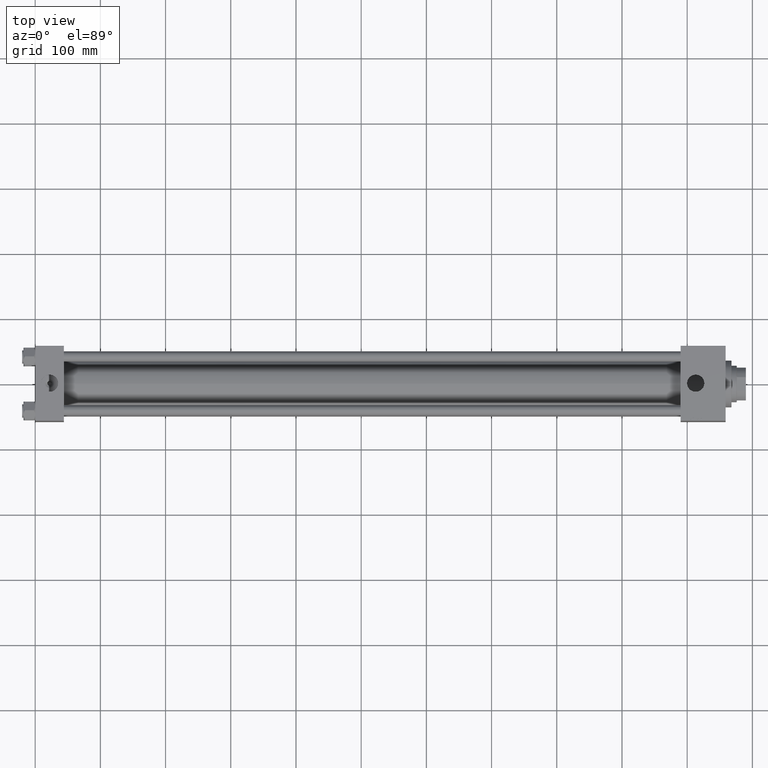
[diagram: clean part render]
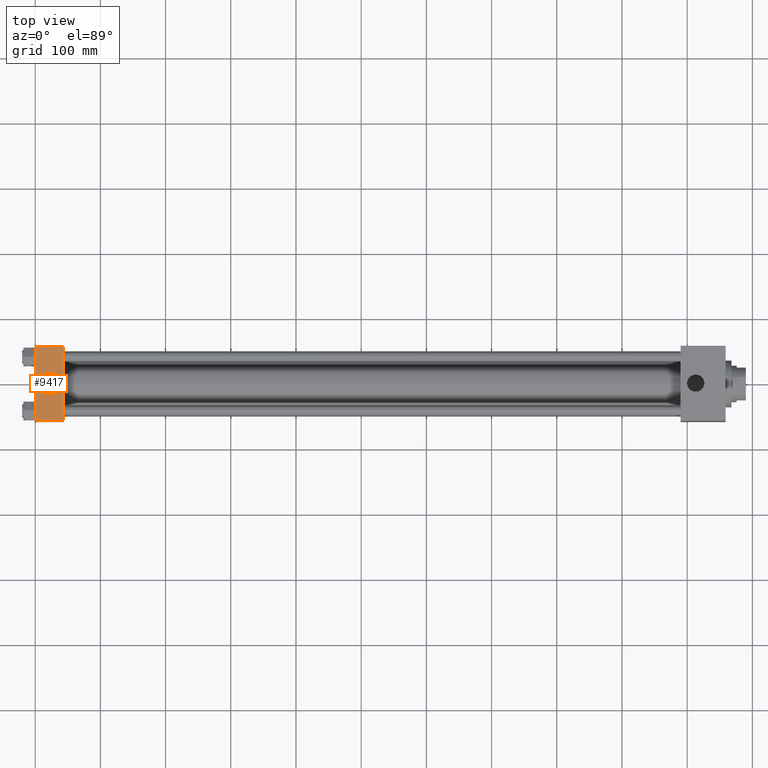
[diagram: same view with one face highlighted and labeled with its STEP entity id]
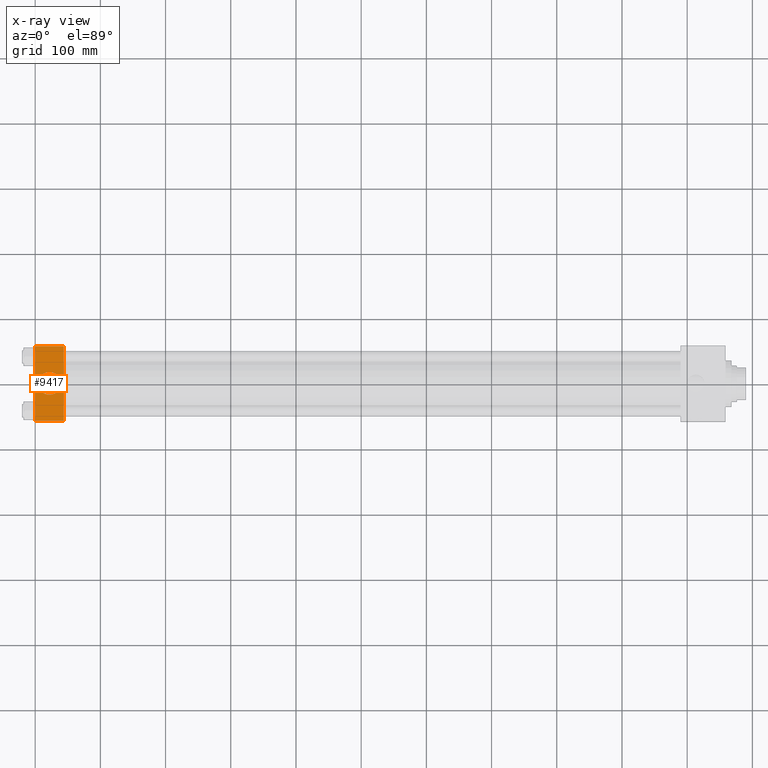
[diagram: x-ray of the same camera — body ghosted, the highlighted face saturated]
A machine part, top view. The second image highlights one B-rep face of the part: STEP entity #9417.
The next image is the same camera in x-ray: the body ghosted, the highlighted face saturated — about 0% of this face is hidden behind the body in this view.
In plain terms, the highlighted planar face has unit normal (0, 0, -1).
Its self-contained STEP definition (entity closure, byte-faithful):
#1423 = CARTESIAN_POINT ( 'NONE',  ( 4.499999999999997335, -6.530485481376167224E-15, 57.50000000000000000 ) ) ;
#1879 = DIRECTION ( 'NONE',  ( 0.000000000000000000, -1.000000000000000000, -1.206764157201257045E-16 ) ) ;
#2601 = VERTEX_POINT ( 'NONE', #41404 ) ;
#2824 = DIRECTION ( 'NONE',  ( 0.000000000000000000, 0.000000000000000000, 1.000000000000000000 ) ) ;
#3148 = VECTOR ( 'NONE', #18020, 1000.000000000000000 ) ;
#4976 = CARTESIAN_POINT ( 'NONE',  ( 44.00000000000000000, 57.49999999999999289, 57.50000000000000711 ) ) ;
#5267 = ORIENTED_EDGE ( 'NONE', *, *, #5566, .F. ) ;
#5566 = EDGE_CURVE ( 'NONE', #32970, #9158, #35955, .T. ) ;
#5607 = CARTESIAN_POINT ( 'NONE',  ( 44.00000000000000000, -57.00000000000003553, 57.49999999999999289 ) ) ;
#6260 = EDGE_CURVE ( 'NONE', #39732, #13487, #32851, .T. ) ;
#6397 = CARTESIAN_POINT ( 'NONE',  ( 44.00000000000000000, 57.49999999999999289, 57.50000000000000711 ) ) ;
#7409 = LINE ( 'NONE', #23003, #28165 ) ;
#8328 = ORIENTED_EDGE ( 'NONE', *, *, #20135, .T. ) ;
#9158 = VERTEX_POINT ( 'NONE', #1423 ) ;
#9417 = ADVANCED_FACE ( 'NONE', ( #14330, #14077 ), #21979, .F. ) ;
#10072 = CARTESIAN_POINT ( 'NONE',  ( 22.00000000000000000, -8.673617379884035472E-15, 57.50000000000000000 ) ) ;
#10988 = DIRECTION ( 'NONE',  ( 1.000000000000000000, 0.000000000000000000, 0.000000000000000000 ) ) ;
#11982 = CARTESIAN_POINT ( 'NONE',  ( 0.000000000000000000, 57.00000000000000711, 57.50000000000000711 ) ) ;
#12226 = DIRECTION ( 'NONE',  ( -1.000000000000000000, 0.000000000000000000, 0.000000000000000000 ) ) ;
#12481 = CARTESIAN_POINT ( 'NONE',  ( 0.000000000000000000, 57.00000000000000711, 57.50000000000000711 ) ) ;
#13487 = VERTEX_POINT ( 'NONE', #5607 ) ;
#13930 = LINE ( 'NONE', #21082, #3148 ) ;
#14077 = FACE_OUTER_BOUND ( 'NONE', #25666, .T. ) ;
#14330 = FACE_BOUND ( 'NONE', #49637, .T. ) ;
#14785 = VECTOR ( 'NONE', #1879, 1000.000000000000000 ) ;
#18020 = DIRECTION ( 'NONE',  ( 0.000000000000000000, -1.000000000000000000, -1.206764157201257045E-16 ) ) ;
#19663 = ORIENTED_EDGE ( 'NONE', *, *, #44191, .T. ) ;
#20135 = EDGE_CURVE ( 'NONE', #2601, #13487, #7409, .T. ) ;
#21082 = CARTESIAN_POINT ( 'NONE',  ( 0.000000000000000000, 57.49999999999999289, 57.50000000000000711 ) ) ;
#21979 = PLANE ( 'NONE',  #34509 ) ;
#23003 = CARTESIAN_POINT ( 'NONE',  ( 44.00000000000000000, -57.00000000000003553, 57.49999999999999289 ) ) ;
#25183 = AXIS2_PLACEMENT_3D ( 'NONE', #10072, #44646, #37705 ) ;
#25666 = EDGE_LOOP ( 'NONE', ( #19663, #8328, #37835, #34058 ) ) ;
#25887 = EDGE_CURVE ( 'NONE', #39732, #30541, #31176, .T. ) ;
#26295 = ORIENTED_EDGE ( 'NONE', *, *, #46977, .F. ) ;
#28165 = VECTOR ( 'NONE', #10988, 1000.000000000000000 ) ;
#29678 = DIRECTION ( 'NONE',  ( 0.000000000000000000, 1.206764157201257045E-16, -1.000000000000000000 ) ) ;
#30541 = VERTEX_POINT ( 'NONE', #11982 ) ;
#30721 = CARTESIAN_POINT ( 'NONE',  ( 22.00000000000000000, -8.673617379884035472E-15, 57.50000000000000000 ) ) ;
#31079 = AXIS2_PLACEMENT_3D ( 'NONE', #30721, #2824, #41467 ) ;
#31176 = LINE ( 'NONE', #12481, #42129 ) ;
#32851 = LINE ( 'NONE', #4976, #14785 ) ;
#32970 = VERTEX_POINT ( 'NONE', #35961 ) ;
#33011 = DIRECTION ( 'NONE',  ( 0.000000000000000000, 1.000000000000000000, 1.206764157201257045E-16 ) ) ;
#34058 = ORIENTED_EDGE ( 'NONE', *, *, #25887, .T. ) ;
#34509 = AXIS2_PLACEMENT_3D ( 'NONE', #6397, #29678, #33011 ) ;
#34994 = CIRCLE ( 'NONE', #25183, 17.50000000000000000 ) ;
#35955 = CIRCLE ( 'NONE', #31079, 17.50000000000000000 ) ;
#35961 = CARTESIAN_POINT ( 'NONE',  ( 39.50000000000000000, -8.673617379884035472E-15, 57.50000000000000000 ) ) ;
#37705 = DIRECTION ( 'NONE',  ( 1.000000000000000000, 0.000000000000000000, 0.000000000000000000 ) ) ;
#37835 = ORIENTED_EDGE ( 'NONE', *, *, #6260, .F. ) ;
#39732 = VERTEX_POINT ( 'NONE', #46565 ) ;
#41404 = CARTESIAN_POINT ( 'NONE',  ( 0.000000000000000000, -57.00000000000003553, 57.49999999999999289 ) ) ;
#41467 = DIRECTION ( 'NONE',  ( 1.000000000000000000, 0.000000000000000000, 0.000000000000000000 ) ) ;
#42129 = VECTOR ( 'NONE', #12226, 1000.000000000000000 ) ;
#44191 = EDGE_CURVE ( 'NONE', #30541, #2601, #13930, .T. ) ;
#44646 = DIRECTION ( 'NONE',  ( 0.000000000000000000, 0.000000000000000000, 1.000000000000000000 ) ) ;
#46565 = CARTESIAN_POINT ( 'NONE',  ( 44.00000000000000000, 57.00000000000000711, 57.50000000000000711 ) ) ;
#46977 = EDGE_CURVE ( 'NONE', #9158, #32970, #34994, .T. ) ;
#49637 = EDGE_LOOP ( 'NONE', ( #5267, #26295 ) ) ;